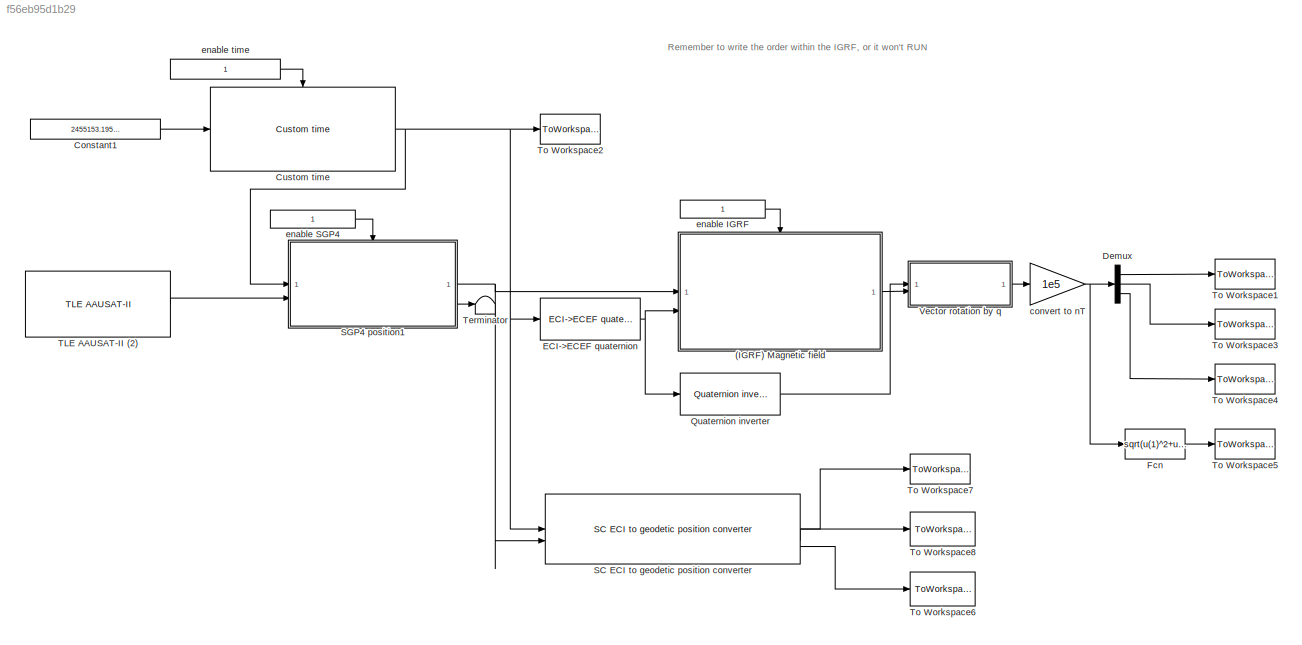
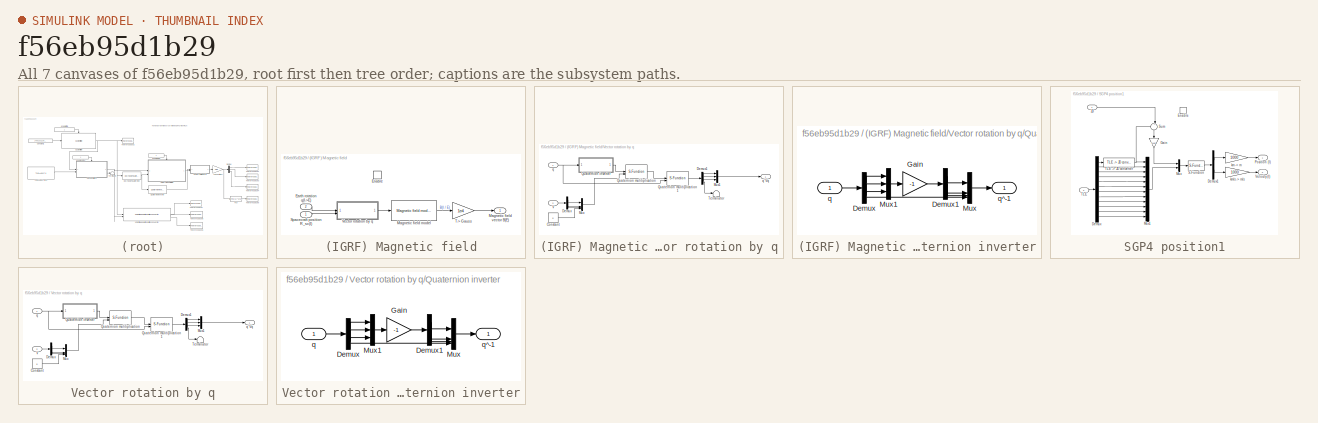
[diagram: thumbnail index - all 7 canvases of the model, root first then tree order]
MODEL mdl_f56eb95d1b29
KIND model
CONFIG AbsTol = auto
CONFIG EnableMultiTasking = on
CONFIG FixedStep = auto
CONFIG MaxStep = 1
CONFIG MinStep = auto
CONFIG RelTol = 1e-3
CONFIG SampleTimeConstraint = Unconstrained
CONFIG SolverName = VariableStepDiscrete
CONFIG StartTime = 0.0
CONFIG StopTime = 6000
BLOCK [SubSystem] (IGRF) Magnetic field
  AncestorBlock = aausat3_lib/Orbit and Ephemeris/(IGRF) Magnetic field
  TreatAsAtomicUnit = on
BLOCK [Inport] (IGRF) Magnetic field/Earth rotation q(I->E)
  NameLocation = top
  Port = 2
BLOCK [EnablePort] (IGRF) Magnetic field/Enable
BLOCK [Reference] (IGRF) Magnetic field/Magnetic field model  REF=aausat3_lib/Orbit and Ephemeris/Magnetic field model  (lib defined in mdl_4157f6465749, slx_d9305f96731e)
  SourceBlock = aausat3_lib/Orbit and Ephemeris/Magnetic field model
  SourceProductName = AAUSAT3
  SourceType = SubSystem
BLOCK [Outport] (IGRF) Magnetic field/Magnetic field vector B(E)
BLOCK [Inport] (IGRF) Magnetic field/Spacecraft position R_sc(I)
BLOCK [Gain] (IGRF) Magnetic field/T-> Gauss
  Gain = 1e4
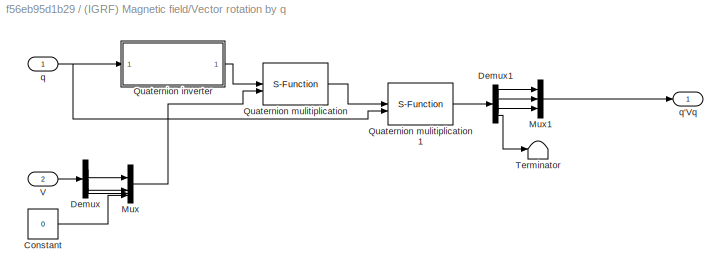
BLOCK [SubSystem] (IGRF) Magnetic field/Vector rotation by q
  AncestorBlock = aausat3_lib/Math Utilities/Quaternion operations/Vector rotation by q
BLOCK [Constant] (IGRF) Magnetic field/Vector rotation by q/Constant
  Value = 0
BLOCK [Demux] (IGRF) Magnetic field/Vector rotation by q/Demux
  DisplayOption = none
  Outputs = 3
BLOCK [Demux] (IGRF) Magnetic field/Vector rotation by q/Demux1
  DisplayOption = none
BLOCK [Mux] (IGRF) Magnetic field/Vector rotation by q/Mux
  DisplayOption = bar
BLOCK [Mux] (IGRF) Magnetic field/Vector rotation by q/Mux1
  DisplayOption = bar
  Inputs = 3
BLOCK [SubSystem] (IGRF) Magnetic field/Vector rotation by q/Quaternion inverter
BLOCK [Demux] (IGRF) Magnetic field/Vector rotation by q/Quaternion inverter/Demux
  DisplayOption = none
BLOCK [Demux] (IGRF) Magnetic field/Vector rotation by q/Quaternion inverter/Demux1
  DisplayOption = none
  Outputs = 3
BLOCK [Gain] (IGRF) Magnetic field/Vector rotation by q/Quaternion inverter/Gain
  Gain = -1
  NameLocation = top
  OutDataTypeStr = Inherit: Same as input
  ParamDataTypeStr = Inherit: Same as input
  SaturateOnIntegerOverflow = on
BLOCK [Mux] (IGRF) Magnetic field/Vector rotation by q/Quaternion inverter/Mux
  DisplayOption = bar
BLOCK [Mux] (IGRF) Magnetic field/Vector rotation by q/Quaternion inverter/Mux1
  DisplayOption = bar
  Inputs = 3
BLOCK [Inport] (IGRF) Magnetic field/Vector rotation by q/Quaternion inverter/q
BLOCK [Outport] (IGRF) Magnetic field/Vector rotation by q/Quaternion inverter/q^-1
BLOCK [S-Function] (IGRF) Magnetic field/Vector rotation by q/Quaternion mulitiplication
  EnableBusSupport = off
  FunctionName = qmul
  SFcnIsStateOwnerBlock = off
  SFunctionDeploymentMode = off
BLOCK [S-Function] (IGRF) Magnetic field/Vector rotation by q/Quaternion mulitiplication1
  EnableBusSupport = off
  FunctionName = qmul
  SFcnIsStateOwnerBlock = off
  SFunctionDeploymentMode = off
BLOCK [Terminator] (IGRF) Magnetic field/Vector rotation by q/Terminator
BLOCK [Inport] (IGRF) Magnetic field/Vector rotation by q/V
  Port = 2
BLOCK [Inport] (IGRF) Magnetic field/Vector rotation by q/q
BLOCK [Outport] (IGRF) Magnetic field/Vector rotation by q/q'Vq
BLOCK [Constant] Constant1
  NameLocation = top
  Value = 2455153.1954225
BLOCK [Reference] Custom time  REF=aausat3_lib/Orbit and Ephemeris/Custom time  (lib defined in mdl_4157f6465749, slx_d9305f96731e)
  SourceBlock = aausat3_lib/Orbit and Ephemeris/Custom time
  SourceProductName = AAUSAT3
  SourceType = SubSystem
BLOCK [Demux] Demux
  Outputs = 3
BLOCK [Reference] ECI->ECEF quaternion  REF=aausat3_lib/Orbit and Ephemeris/ECI->ECEF quaternion  (lib defined in mdl_4157f6465749, slx_d9305f96731e)
  SourceBlock = aausat3_lib/Orbit and Ephemeris/ECI->ECEF quaternion
  SourceProductName = AAUSAT3
  SourceType = SubSystem
BLOCK [Fcn] Fcn
  Expr = sqrt(u(1)^2+u(2)^2+u(3)^2)
BLOCK [Reference] Quaternion inverter  REF=aausat3_lib/Math Utilities/Quaternion operations/Quaternion inverter  (lib defined in mdl_4157f6465749, slx_d9305f96731e)
  SourceBlock = aausat3_lib/Math Utilities/Quaternion operations/Quaternion inverter
  SourceProductName = AAUSAT3
  SourceType = SubSystem
BLOCK [Reference] SC ECI to geodetic position converter  REF=aausat3_lib/Other Model Utilities/SC ECI to geodetic position converter  (lib defined in mdl_4157f6465749, slx_d9305f96731e)
  SourceBlock = aausat3_lib/Other Model Utilities/SC ECI to geodetic position converter
  SourceProductName = AAUSAT3
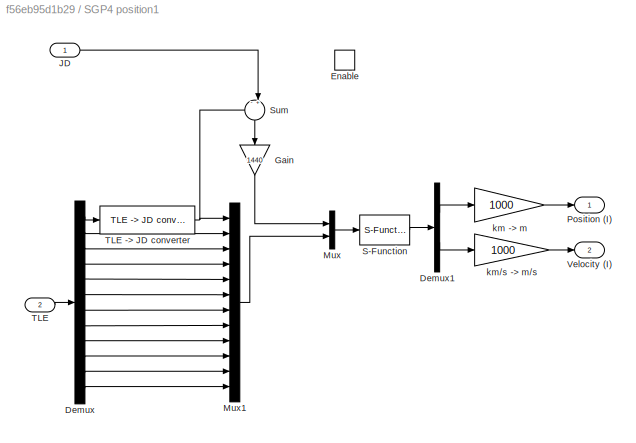
BLOCK [SubSystem] SGP4 position1
  AncestorBlock = aausat3_lib/Orbit and Ephemeris/SGP4 position
  TreatAsAtomicUnit = on
BLOCK [S-Function] SGP4 position1/ S-Function
  EnableBusSupport = off
  FunctionName = sgp4S
  SFcnIsStateOwnerBlock = off
  SFunctionDeploymentMode = off
BLOCK [Demux] SGP4 position1/Demux
  Outputs = 12
BLOCK [Demux] SGP4 position1/Demux1
  DisplayOption = none
  Outputs = [3 3]
BLOCK [EnablePort] SGP4 position1/Enable
BLOCK [Gain] SGP4 position1/Gain
  Gain = 1440
  NameLocation = left
BLOCK [Inport] SGP4 position1/JD
BLOCK [Mux] SGP4 position1/Mux
  DisplayOption = bar
  Inputs = 2
BLOCK [Mux] SGP4 position1/Mux1
  DisplayOption = bar
  Inputs = 12
BLOCK [Outport] SGP4 position1/Position (I)
  InitialOutput = 0
BLOCK [Sum] SGP4 position1/Sum
  InputSameDT = on
  Inputs = -+|
  NameLocation = left
  OutDataTypeStr = Inherit: Same as first input
  SaturateOnIntegerOverflow = on
BLOCK [Inport] SGP4 position1/TLE
  Port = 2
BLOCK [Reference] SGP4 position1/TLE -> JD converter  REF=aausat3_lib/Other Model Utilities/TLE -> JD converter  (lib defined in mdl_4157f6465749, slx_d9305f96731e)
  NameLocation = top
  SourceBlock = aausat3_lib/Other Model Utilities/TLE -> JD converter
  SourceProductName = AAUSAT3
  SourceType = SubSystem
BLOCK [Outport] SGP4 position1/Velocity (I)
  InitialOutput = 0
  Port = 2
BLOCK [Gain] SGP4 position1/km -> m
  Gain = 1000
  OutDataTypeStr = Inherit: Same as input
  ParamDataTypeStr = Inherit: Same as input
  SaturateOnIntegerOverflow = on
BLOCK [Gain] SGP4 position1/km//s -> m//s
  Gain = 1000
  OutDataTypeStr = Inherit: Same as input
  ParamDataTypeStr = Inherit: Same as input
  SaturateOnIntegerOverflow = on
BLOCK [Reference] TLE AAUSAT-II (2)  REF=aausat3_lib/Orbit and Ephemeris/TLE AAUSAT-II  (lib defined in mdl_4157f6465749, slx_d9305f96731e)
  SourceBlock = aausat3_lib/Orbit and Ephemeris/TLE AAUSAT-II
  SourceProductName = AAUSAT3
BLOCK [Terminator] Terminator
BLOCK [ToWorkspace] To Workspace1
  MaxDataPoints = inf
  SampleTime = -1
  VariableName = B_field1
BLOCK [ToWorkspace] To Workspace2
  MaxDataPoints = inf
  SampleTime = -1
  VariableName = JD
BLOCK [ToWorkspace] To Workspace3
  MaxDataPoints = inf
  SampleTime = -1
  VariableName = B_field2
BLOCK [ToWorkspace] To Workspace4
  MaxDataPoints = inf
  SampleTime = -1
  VariableName = B_field3
BLOCK [ToWorkspace] To Workspace5
  MaxDataPoints = inf
  SampleTime = -1
  VariableName = B_field_tot
BLOCK [ToWorkspace] To Workspace6
  MaxDataPoints = inf
  SampleTime = -1
  VariableName = sc_pos_phi
BLOCK [ToWorkspace] To Workspace7
  MaxDataPoints = inf
  SampleTime = -1
  VariableName = sc_pos_r
BLOCK [ToWorkspace] To Workspace8
  MaxDataPoints = inf
  SampleTime = -1
  VariableName = sc_pos_theta
BLOCK [SubSystem] Vector rotation by q
  AncestorBlock = aausat3_lib/Math Utilities/Quaternion operations/Vector rotation by q
BLOCK [Constant] Vector rotation by q/Constant
  Value = 0
BLOCK [Demux] Vector rotation by q/Demux
  DisplayOption = none
  Outputs = 3
BLOCK [Demux] Vector rotation by q/Demux1
  DisplayOption = none
BLOCK [Mux] Vector rotation by q/Mux
  DisplayOption = bar
BLOCK [Mux] Vector rotation by q/Mux1
  DisplayOption = bar
  Inputs = 3
BLOCK [SubSystem] Vector rotation by q/Quaternion inverter
BLOCK [Demux] Vector rotation by q/Quaternion inverter/Demux
  DisplayOption = none
BLOCK [Demux] Vector rotation by q/Quaternion inverter/Demux1
  DisplayOption = none
  Outputs = 3
BLOCK [Gain] Vector rotation by q/Quaternion inverter/Gain
  Gain = -1
  NameLocation = top
  OutDataTypeStr = Inherit: Same as input
  ParamDataTypeStr = Inherit: Same as input
  SaturateOnIntegerOverflow = on
BLOCK [Mux] Vector rotation by q/Quaternion inverter/Mux
  DisplayOption = bar
BLOCK [Mux] Vector rotation by q/Quaternion inverter/Mux1
  DisplayOption = bar
  Inputs = 3
BLOCK [Inport] Vector rotation by q/Quaternion inverter/q
BLOCK [Outport] Vector rotation by q/Quaternion inverter/q^-1
BLOCK [S-Function] Vector rotation by q/Quaternion mulitiplication
  EnableBusSupport = off
  FunctionName = qmul
  SFcnIsStateOwnerBlock = off
  SFunctionDeploymentMode = off
BLOCK [S-Function] Vector rotation by q/Quaternion mulitiplication1
  EnableBusSupport = off
  FunctionName = qmul
  SFcnIsStateOwnerBlock = off
  SFunctionDeploymentMode = off
BLOCK [Terminator] Vector rotation by q/Terminator
BLOCK [Inport] Vector rotation by q/V
  Port = 2
BLOCK [Inport] Vector rotation by q/q
BLOCK [Outport] Vector rotation by q/q'Vq
BLOCK [Gain] convert to nT
  Gain = 1e5
BLOCK [Constant] enable IGRF
  NameLocation = top
BLOCK [Constant] enable SGP4
  NameLocation = top
BLOCK [Constant] enable time
  NameLocation = top
ANNOTATION (root): Remember to write the order within the IGRF, or it won't RUN
LINE (IGRF) Magnetic field:1 -> Vector rotation by q:2
LINE Constant1:1 -> Custom time:1
NET Custom time:1 -> ECI->ECEF quaternion:1, SC ECI to geodetic position converter:1, SGP4 position1:1, To Workspace2:1
LINE Demux:1 -> To Workspace1:1
LINE Demux:2 -> To Workspace3:1
LINE Demux:3 -> To Workspace4:1
NET ECI->ECEF quaternion:1 -> (IGRF) Magnetic field:2, Quaternion inverter:1
LINE Fcn:1 -> To Workspace5:1
LINE Quaternion inverter:1 -> Vector rotation by q:1
LINE SC ECI to geodetic position converter:1 -> To Workspace7:1
LINE SC ECI to geodetic position converter:2 -> To Workspace8:1
LINE SC ECI to geodetic position converter:3 -> To Workspace6:1
NET SGP4 position1:1 -> (IGRF) Magnetic field:1, SC ECI to geodetic position converter:2
LINE SGP4 position1:2 -> Terminator:1
LINE TLE AAUSAT-II (2):1 -> SGP4 position1:2
LINE Vector rotation by q:1 -> convert to nT:1
NET convert to nT:1 -> Demux:1, Fcn:1
LINE enable IGRF:1 -> (IGRF) Magnetic field:enable
LINE enable SGP4:1 -> SGP4 position1:enable
LINE enable time:1 -> Custom time:enable
note: NET lines group one-source signal fan-out (src -> all destinations, sorted); 1:1 wires keep LINE
